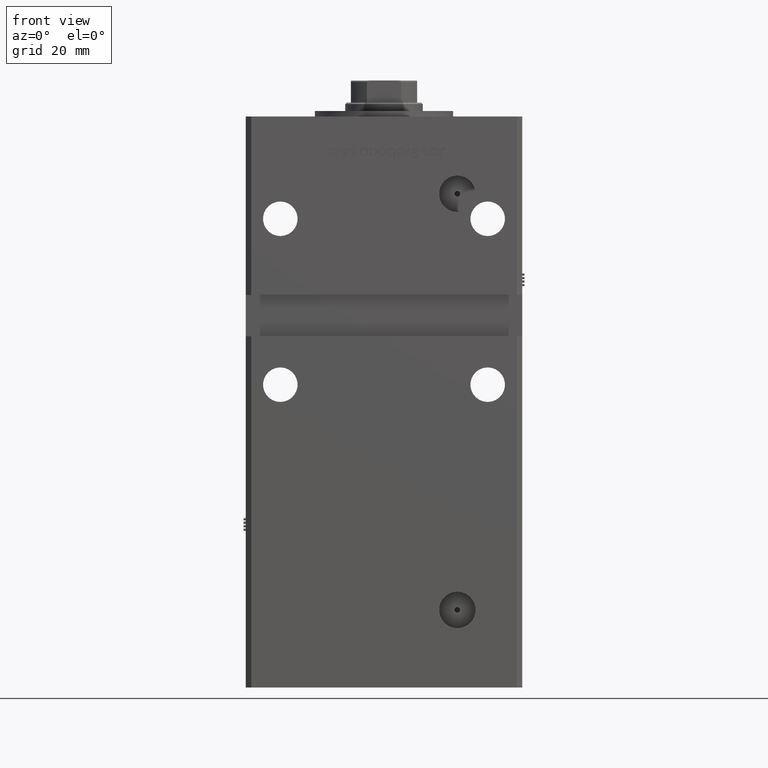
[diagram: clean part render]
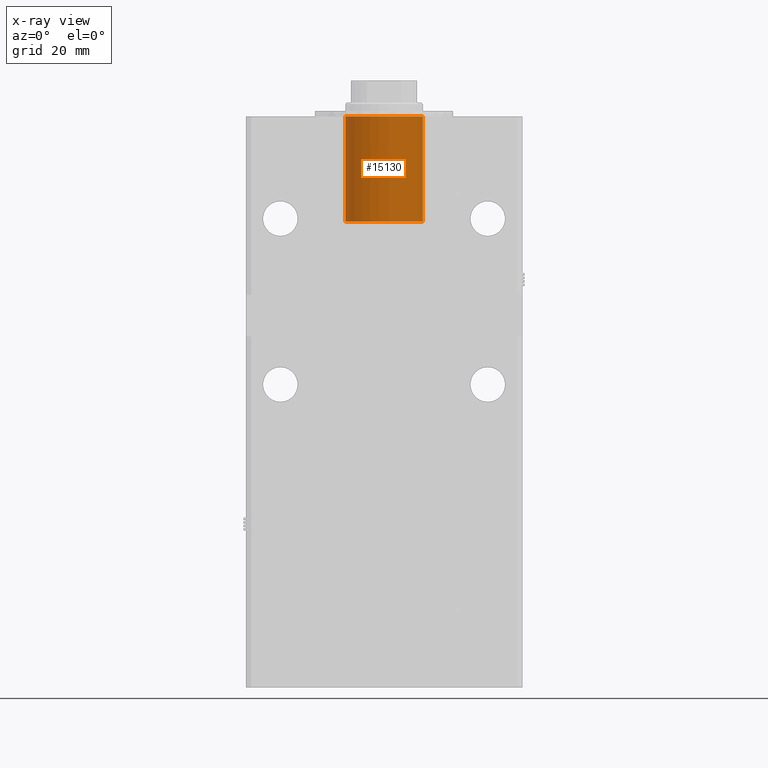
[diagram: x-ray — body ghosted, one internal face saturated and labeled with its STEP entity id]
A machine part, front view, then the same camera in x-ray: the body is ghosted and one INTERNAL B-rep face — a face not visible from any outside direction — is saturated and labeled: STEP entity #15130.
In plain terms, the highlighted cylindrical surface (partial cylindrical patch) has radius 14 mm, axis along (0, 0, 1).
Its self-contained STEP definition (entity closure, byte-faithful):
#718 = CARTESIAN_POINT ( 'NONE',  ( 0.000000000000000000, -6.938893903907228378E-15, -38.00000000000000000 ) ) ;
#929 = VERTEX_POINT ( 'NONE', #41459 ) ;
#976 = VERTEX_POINT ( 'NONE', #9130 ) ;
#1712 = ORIENTED_EDGE ( 'NONE', *, *, #4053, .F. ) ;
#3912 = DIRECTION ( 'NONE',  ( 0.000000000000000000, 0.000000000000000000, 1.000000000000000000 ) ) ;
#4053 = EDGE_CURVE ( 'NONE', #36509, #976, #18075, .T. ) ;
#6272 = AXIS2_PLACEMENT_3D ( 'NONE', #718, #52900, #13823 ) ;
#6696 = FACE_OUTER_BOUND ( 'NONE', #27308, .T. ) ;
#7922 = AXIS2_PLACEMENT_3D ( 'NONE', #16452, #3912, #55235 ) ;
#9130 = CARTESIAN_POINT ( 'NONE',  ( 14.00000000000000000, -6.938893903907228378E-15, -38.00000000000000000 ) ) ;
#9414 = ORIENTED_EDGE ( 'NONE', *, *, #45834, .T. ) ;
#11939 = DIRECTION ( 'NONE',  ( -0.000000000000000000, -0.000000000000000000, 1.000000000000000000 ) ) ;
#13823 = DIRECTION ( 'NONE',  ( 1.000000000000000000, 0.000000000000000000, 0.000000000000000000 ) ) ;
#14258 = ORIENTED_EDGE ( 'NONE', *, *, #42493, .T. ) ;
#15130 = ADVANCED_FACE ( 'NONE', ( #6696 ), #28374, .F. ) ;
#15232 = DIRECTION ( 'NONE',  ( -0.000000000000000000, -0.000000000000000000, 1.000000000000000000 ) ) ;
#16452 = CARTESIAN_POINT ( 'NONE',  ( 0.000000000000000000, -6.938893903907228378E-15, 0.000000000000000000 ) ) ;
#17041 = VERTEX_POINT ( 'NONE', #21199 ) ;
#18075 = CIRCLE ( 'NONE', #6272, 14.00000000000000000 ) ;
#20430 = EDGE_CURVE ( 'NONE', #976, #929, #21631, .T. ) ;
#20651 = DIRECTION ( 'NONE',  ( 1.000000000000000000, 0.000000000000000000, 0.000000000000000000 ) ) ;
#21199 = CARTESIAN_POINT ( 'NONE',  ( -14.00000000000000000, -5.224388385100933937E-15, 0.000000000000000000 ) ) ;
#21540 = AXIS2_PLACEMENT_3D ( 'NONE', #33197, #15232, #20651 ) ;
#21631 = LINE ( 'NONE', #51026, #22477 ) ;
#22477 = VECTOR ( 'NONE', #11939, 1000.000000000000000 ) ;
#25778 = CARTESIAN_POINT ( 'NONE',  ( -14.00000000000000000, -5.224388385100933937E-15, -38.00000000000000000 ) ) ;
#27308 = EDGE_LOOP ( 'NONE', ( #1712, #9414, #14258, #41735 ) ) ;
#28374 = CYLINDRICAL_SURFACE ( 'NONE', #21540, 14.00000000000000000 ) ;
#33197 = CARTESIAN_POINT ( 'NONE',  ( 0.000000000000000000, -6.938893903907228378E-15, -38.00000000000000000 ) ) ;
#36509 = VERTEX_POINT ( 'NONE', #25778 ) ;
#36615 = LINE ( 'NONE', #53175, #52658 ) ;
#40073 = DIRECTION ( 'NONE',  ( -0.000000000000000000, -0.000000000000000000, 1.000000000000000000 ) ) ;
#41459 = CARTESIAN_POINT ( 'NONE',  ( 14.00000000000000000, -6.938893903907228378E-15, 0.000000000000000000 ) ) ;
#41629 = CIRCLE ( 'NONE', #7922, 14.00000000000000000 ) ;
#41735 = ORIENTED_EDGE ( 'NONE', *, *, #20430, .F. ) ;
#42493 = EDGE_CURVE ( 'NONE', #17041, #929, #41629, .T. ) ;
#45834 = EDGE_CURVE ( 'NONE', #36509, #17041, #36615, .T. ) ;
#51026 = CARTESIAN_POINT ( 'NONE',  ( 14.00000000000000000, -6.938893903907228378E-15, -38.00000000000000000 ) ) ;
#52658 = VECTOR ( 'NONE', #40073, 1000.000000000000000 ) ;
#52900 = DIRECTION ( 'NONE',  ( 0.000000000000000000, 0.000000000000000000, 1.000000000000000000 ) ) ;
#53175 = CARTESIAN_POINT ( 'NONE',  ( -14.00000000000000000, -5.224388385100933937E-15, -38.00000000000000000 ) ) ;
#55235 = DIRECTION ( 'NONE',  ( 1.000000000000000000, 0.000000000000000000, 0.000000000000000000 ) ) ;